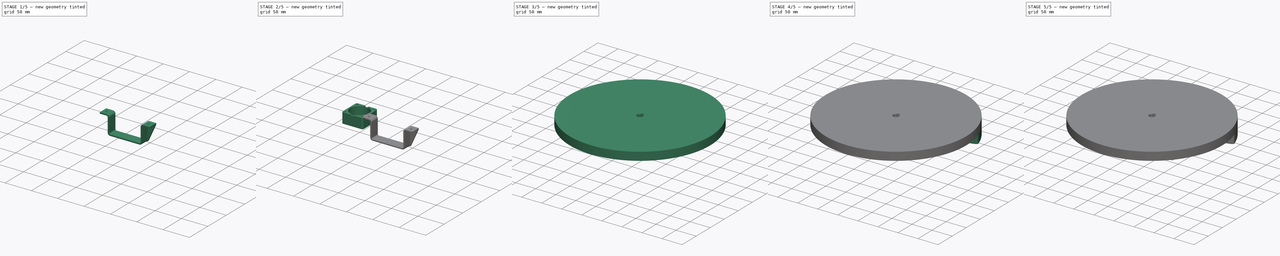
[diagram: build sequence overview — one tinted view per stage of 5, left to right]
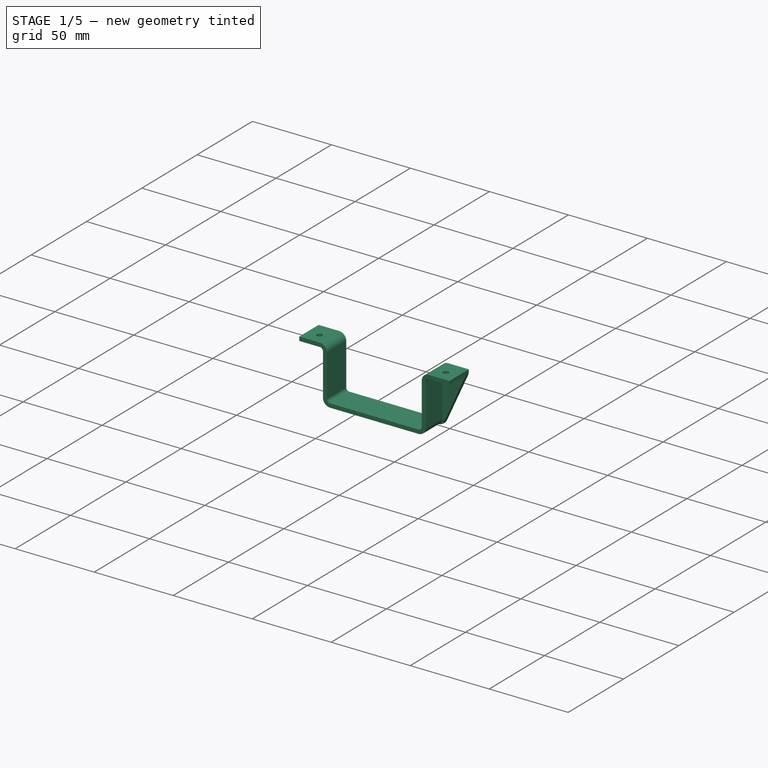
[diagram: stage 1 of 5 — iso view after this stage's code; geometry added in this stage tinted green]
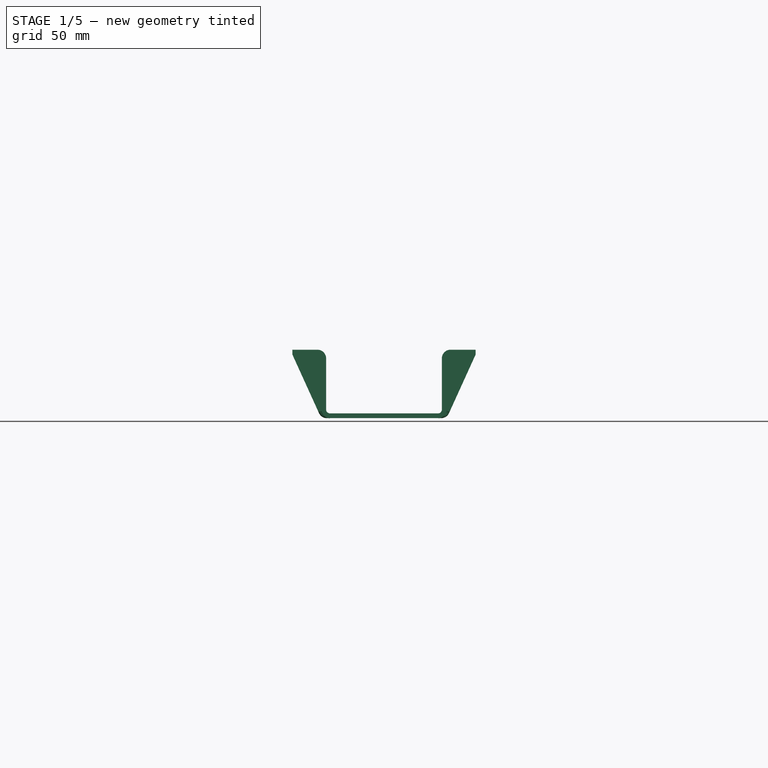
[diagram: stage 1 of 5 — front view after this stage's code; geometry added in this stage tinted green]
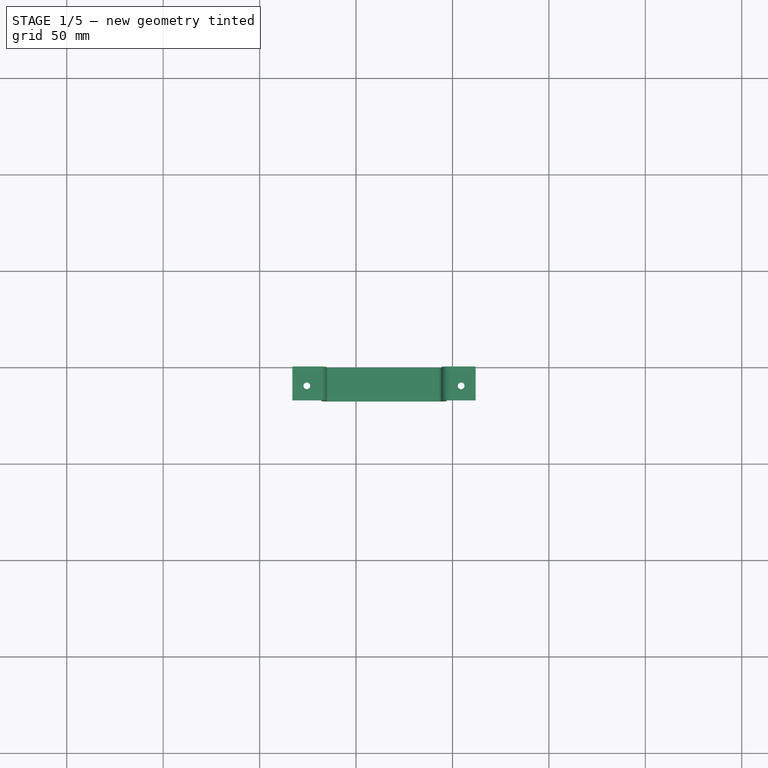
[diagram: stage 1 of 5 — top view after this stage's code; geometry added in this stage tinted green]
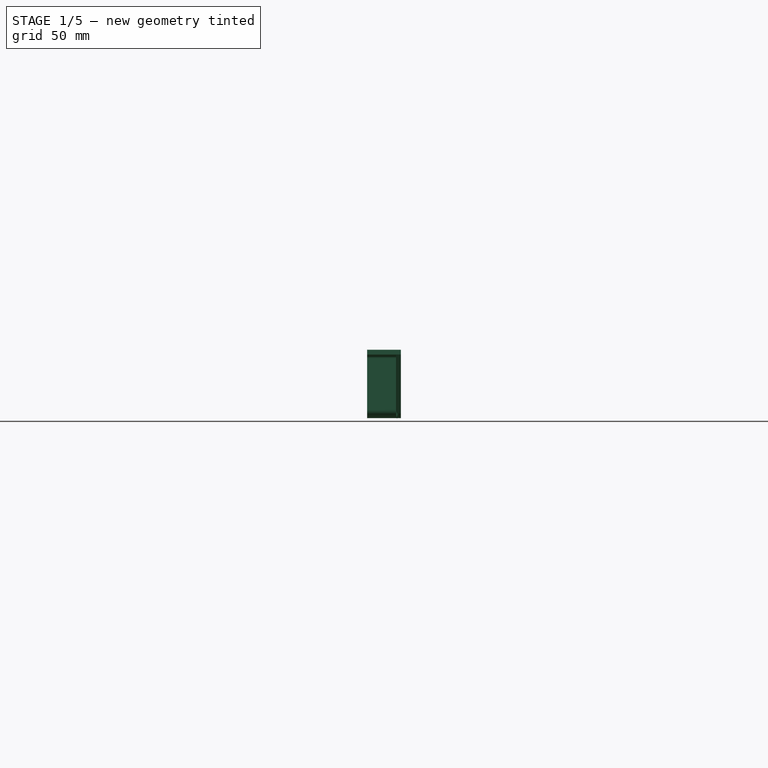
[diagram: stage 1 of 5 — right view after this stage's code; geometry added in this stage tinted green]
FCSTD DOCUMENT  (FreeCAD 0.20R29410 (Git))
Label: main_shape
License: All rights reserved
LicenseURL: http://en.wikipedia.org/wiki/All_rights_reserved
objects: Sketcher::SketchObject×13, PartDesign::Body×13, PartDesign::Fillet×11, PartDesign::Pad×9, PartDesign::FeatureBase×8, PartDesign::Pocket×4, PartDesign::PolarPattern×2, Part::Fillet×1, PartDesign::MultiTransform×1
note: 86 computed .brp shape members not serialized (recipe doc carries the construction recipe); baked Part::Feature solids carry a one-line shape summary decoded from their .brp

FEATURE [PartDesign::Body] Body004  label="fan"
  Group = -> [Sketch008,Pad006,Sketch011,Pocket002,Fillet002,Fillet003,Fillet004]
  Origin = -> Origin004
  Tip = -> Fillet004
FEATURE [Sketcher::SketchObject] Sketch012
  FullyConstrained = true
  MapMode = 5
  Placement = pos=(0,0,0) rot=(1,0,0;1.5708rad)
  Support = -> [XZ_Plane012]
  sketch-geometry (22):
    g0: LineSegment StartX=17 StartY=0 StartZ=0 EndX=34.5 EndY=0 EndZ=0
    g1: LineSegment StartX=112 StartY=0 StartZ=0 EndX=112 EndY=-35.5 EndZ=0
    g2: LineSegment StartX=97 StartY=-35.5 StartZ=0 EndX=32 EndY=-35.5 EndZ=0
    g3: LineSegment StartX=17 StartY=-35.5 StartZ=0 EndX=17 EndY=0 EndZ=0
    g4: LineSegment StartX=34.5 StartY=-33 StartZ=0 EndX=94.5 EndY=-33 EndZ=0
    g5: LineSegment StartX=94.5 StartY=-33 StartZ=0 EndX=94.5 EndY=0 EndZ=0
    g6: LineSegment StartX=34.5 StartY=0 StartZ=0 EndX=34.5 EndY=-33 EndZ=0
    g7: LineSegment StartX=17 StartY=0 StartZ=0 EndX=17 EndY=-2.5 EndZ=0
    g8: LineSegment StartX=17 StartY=-2.5 StartZ=0 EndX=32 EndY=-35.5 EndZ=0
    g9: LineSegment StartX=112 StartY=0 StartZ=0 EndX=112 EndY=-2.5 EndZ=0
    g10: LineSegment StartX=112 StartY=-2.5 StartZ=0 EndX=97 EndY=-35.5 EndZ=0
    g11: LineSegment StartX=32 StartY=-35.5 StartZ=0 EndX=97 EndY=-35.5 EndZ=0
    g12: LineSegment StartX=17 StartY=0 StartZ=0 EndX=34.5 EndY=0 EndZ=0
    g13: LineSegment StartX=34.5 StartY=0 StartZ=0 EndX=34.5 EndY=-33 EndZ=0
    g14: LineSegment StartX=34.5 StartY=-33 StartZ=0 EndX=94.5 EndY=-33 EndZ=0
    g15: LineSegment StartX=94.5 StartY=-33 StartZ=0 EndX=94.5 EndY=0 EndZ=0
    g16: LineSegment StartX=94.5 StartY=0 StartZ=0 EndX=112 EndY=0 EndZ=0
    g17: LineSegment StartX=97 StartY=-35.5 StartZ=0 EndX=32 EndY=-35.5 EndZ=0
    g18: LineSegment StartX=32 StartY=-35.5 StartZ=0 EndX=97 EndY=-35.5 EndZ=0
    g19: LineSegment StartX=94.5 StartY=0 StartZ=0 EndX=112 EndY=0 EndZ=0
    g20: LineSegment StartX=94.5 StartY=0 StartZ=0 EndX=112 EndY=0 EndZ=0
    g21: LineSegment StartX=34.5 StartY=0 StartZ=0 EndX=94.5 EndY=0 EndZ=0
  constraints (56):
    c: Coincident(g20,g1)
    c: Coincident(g3,g0)
    c: Horizontal(g0)
    c: Horizontal(g2)
    c: Vertical(g1)
    c: Vertical(g3)
    c: PointOnObject(g0,g-1)
    c: Coincident(g4,g5)
    c: Coincident(g6,g4)
    c: Horizontal(g4)
    c: Vertical(g5)
    c: Vertical(g6)
    c: DistanceX(g4,g4) = 60
    c: DistanceY(g6,g6) = 33
    c: Distance(g4,g2) = 2.5
    c: Distance(g0,g6) = 17.5
    c: Distance(g20,g5) = 17.5
    c: Distance(g0,g-1) = 17
    c: Coincident(g7,g0)
    c: PointOnObject(g7,g3)
    c: Coincident(g8,g7)
    c: Coincident(g9,g20)
    c: PointOnObject(g9,g1)
    c: Coincident(g10,g9)
    c: Coincident(g11,g8)
    c: Coincident(g11,g10)
    c: Distance(g8,g6) = 2.5
    c: Distance(g10,g5) = 2.5
    c: Coincident(g12,g7)
    c: Coincident(g13,g4)
    c: Coincident(g14,g4)
    c: Coincident(g14,g4)
    c: Coincident(g15,g4)
    c: Coincident(g15,g5)
    c: Coincident(g16,g5)
    c: Coincident(g16,g9)
    c: Coincident(g17,g10)
    c: Coincident(g17,g8)
    c: Distance(g7,g7) = 2.5
    c: Coincident(g18,g8)
    c: Coincident(g18,g10)
    c: Coincident(g19,g5)
    c: Coincident(g19,g9)
    c: Coincident(g20,g5)
    c: Coincident(g2,g8)
    c: Coincident(g2,g10)
    c: DistanceY(g9,g9) = 2.5
    c: Coincident(g0,g6)
    c: Coincident(g0,g12)
    c: Coincident(g0,g13)
    c: Horizontal(g16)
    c: Coincident(g21,g0)
    c: Coincident(g21,g5)
    c: Horizontal(g21)
    c: PointOnObject(g1,g2)
    c: PointOnObject(g3,g2)
FEATURE [PartDesign::Pad] Pad007
  Direction = (0,-1,2e-16)
  Length = 2.5
  Length2 = 10
  Placement = pos=(0,0,0) rot=(1,0,0;1.5708rad)
  Profile = -> Sketch012
  ReferenceAxis = -> Sketch012 [N_Axis]
  Type = 0
FEATURE [Sketcher::SketchObject] Sketch013
  ExternalGeometry = -> [Pad007]
  FullyConstrained = true
  MapMode = 5
  Placement = pos=(0,0,0) rot=(1,0,0;1.5708rad)
  Support = -> [XZ_Plane012]
  sketch-geometry (12):
    g0: LineSegment StartX=17 StartY=0 StartZ=0 EndX=34.5 EndY=0 EndZ=0
    g1: LineSegment StartX=32 StartY=-2.5 StartZ=0 EndX=17 EndY=-2.5 EndZ=0
    g2: LineSegment StartX=17 StartY=-2.5 StartZ=0 EndX=17 EndY=0 EndZ=0
    g3: LineSegment StartX=32 StartY=-2.5 StartZ=0 EndX=32 EndY=-35.5 EndZ=0
    g4: LineSegment StartX=34.5 StartY=-33 StartZ=0 EndX=34.5 EndY=0 EndZ=0
    g5: LineSegment StartX=112 StartY=0 StartZ=0 EndX=94.5 EndY=0 EndZ=0
    g6: LineSegment StartX=97 StartY=-2.5 StartZ=0 EndX=112 EndY=-2.5 EndZ=0
    g7: LineSegment StartX=112 StartY=-2.5 StartZ=0 EndX=112 EndY=0 EndZ=0
    g8: LineSegment StartX=97 StartY=-2.5 StartZ=0 EndX=97 EndY=-35.5 EndZ=0
    g9: LineSegment StartX=94.5 StartY=-33 StartZ=0 EndX=94.5 EndY=0 EndZ=0
    g10: LineSegment StartX=94.5 StartY=-33 StartZ=0 EndX=34.5 EndY=-33 EndZ=0
    g11: LineSegment StartX=32 StartY=-35.5 StartZ=0 EndX=97 EndY=-35.5 EndZ=0
  constraints (32):
    c: Coincident(g1,g2)
    c: Coincident(g2,g0)
    c: Horizontal(g0)
    c: Horizontal(g1)
    c: Vertical(g2)
    c: Coincident(g0,g-7)
    c: Vertical(g3)
    c: Vertical(g4)
    c: Coincident(g6,g7)
    c: Coincident(g7,g5)
    c: Horizontal(g5)
    c: Horizontal(g6)
    c: Vertical(g7)
    c: Coincident(g5,g-6)
    c: Vertical(g8)
    c: Vertical(g9)
    c: Coincident(g10,g-5)
    c: Coincident(g11,g3)
    c: Coincident(g11,g8)
    c: Horizontal(g11)
    c: Coincident(g0,g4)
    c: Coincident(g5,g9)
    c: DistanceY(g2,g2) = 2.5
    c: DistanceY(g7,g7) = 2.5
    c: Coincident(g8,g6)
    c: Coincident(g1,g3)
    c: DistanceX(g3,g4) = 2.5
    c: DistanceX(g9,g8) = 2.5
    c: DistanceY(g3,g4) = 2.5
    c: Coincident(g9,g10)
    c: Coincident(g4,g10)
    c: Coincident(g4,g-4)
FEATURE [PartDesign::Pad] Pad008
  BaseFeature = -> Pad007
  Direction = (0,-1,2e-16)
  Length = 17.5
  Length2 = 10
  Placement = pos=(0,0,0) rot=(1,0,0;1.5708rad)
  Profile = -> Sketch013
  ReferenceAxis = -> Sketch013 [N_Axis]
  Type = 0
FEATURE [Sketcher::SketchObject] Sketch014
  ExternalGeometry = -> [Pad008]
  FullyConstrained = true
  MapMode = 5
  Support = -> [XY_Plane012]
  sketch-geometry (2):
    g0: Circle CenterX=24.5 CenterY=-10 CenterZ=0 NormalX=0 NormalY=0 NormalZ=1 AngleXU=0 Radius=1.75
    g1: Circle CenterX=104.5 CenterY=-10 CenterZ=0 NormalX=0 NormalY=0 NormalZ=1 AngleXU=0 Radius=1.75
  constraints (4):
    c: Symmetric(g-5,g-6,g1)
    c: Symmetric(g-3,g-4,g0)
    c: Diameter(g0) = 3.5
    c: Equal(g0,g1)
FEATURE [PartDesign::Pocket] Pocket003
  BaseFeature = -> Pad008
  Direction = (0,0,-1)
  Length = 5
  Length2 = 5
  Placement = pos=(0,0,0) rot=(1,0,0;1.5708rad)
  Profile = -> Sketch014
  ReferenceAxis = -> Sketch014 [N_Axis]
  Type = 1
FEATURE [PartDesign::Fillet] Fillet005
  Base = -> Pocket003 [Edge56,Edge29,Edge8,Edge32]
  BaseFeature = -> Pocket003
  Placement = pos=(0,0,0) rot=(1,0,0;1.5708rad)
  Radius = 2
  SupportTransform = false
  UseAllEdges = false
FEATURE [PartDesign::Fillet] Fillet006
  Base = -> Fillet005 [Edge66,Edge36,Edge67,Edge37]
  BaseFeature = -> Fillet005
  Placement = pos=(0,0,0) rot=(1,0,0;1.5708rad)
  Radius = 4.5
  SupportTransform = false
  UseAllEdges = false
FEATURE [PartDesign::Fillet] Fillet007
  Base = -> Fillet006 [Edge93,Edge96]
  BaseFeature = -> Fillet006
  Placement = pos=(0,0,0) rot=(1,0,0;1.5708rad)
  Radius = 2
  SupportTransform = false
  UseAllEdges = false
FEATURE [PartDesign::Fillet] Fillet008
  Base = -> Fillet007 [Edge67,Edge99,Edge53,Edge89]
  BaseFeature = -> Fillet007
  Placement = pos=(0,0,0) rot=(1,0,0;1.5708rad)
  Radius = 4.5
  SupportTransform = false
  UseAllEdges = false
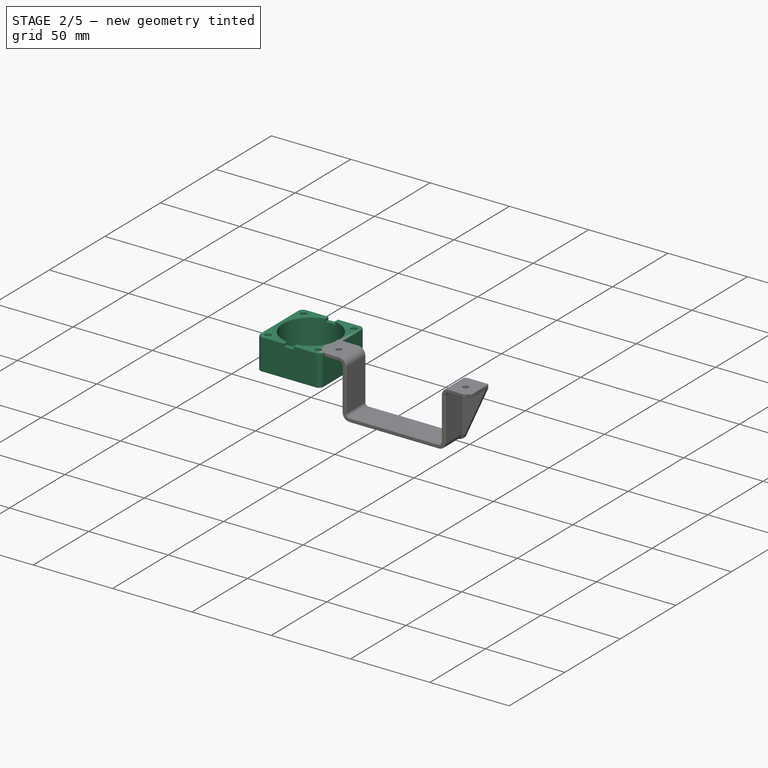
[diagram: stage 2 of 5 — iso view after this stage's code; geometry added in this stage tinted green]
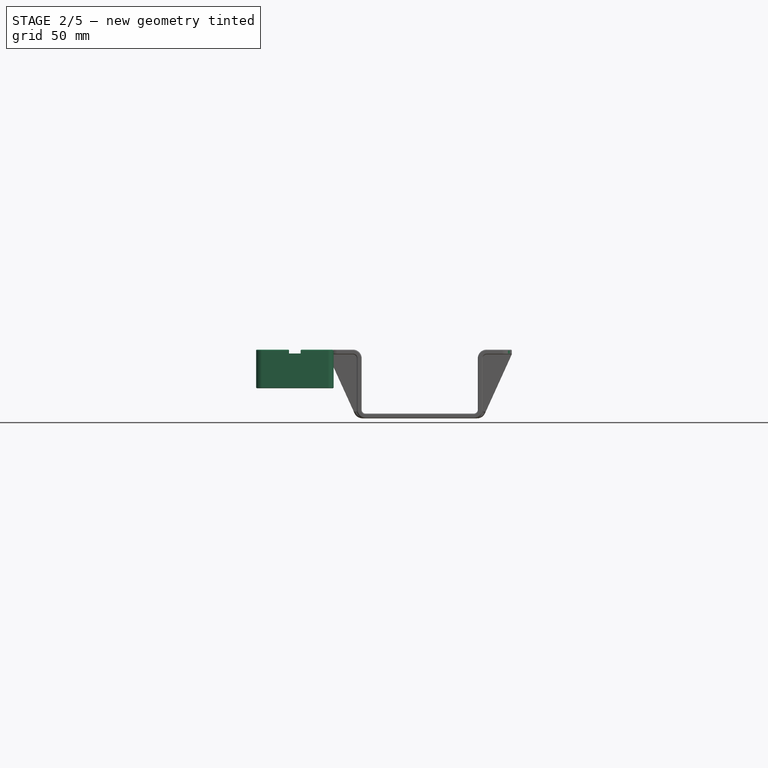
[diagram: stage 2 of 5 — front view after this stage's code; geometry added in this stage tinted green]
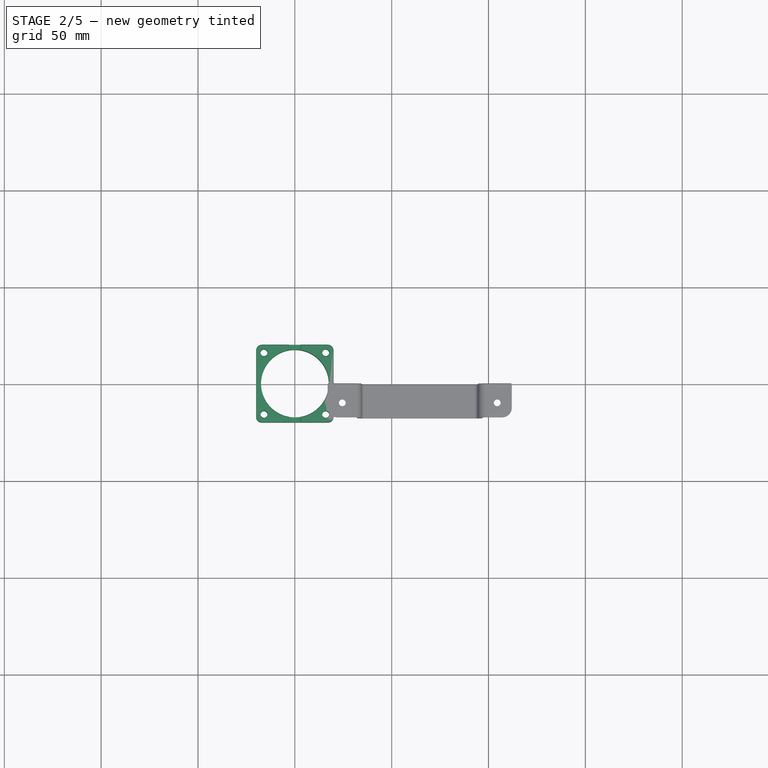
[diagram: stage 2 of 5 — top view after this stage's code; geometry added in this stage tinted green]
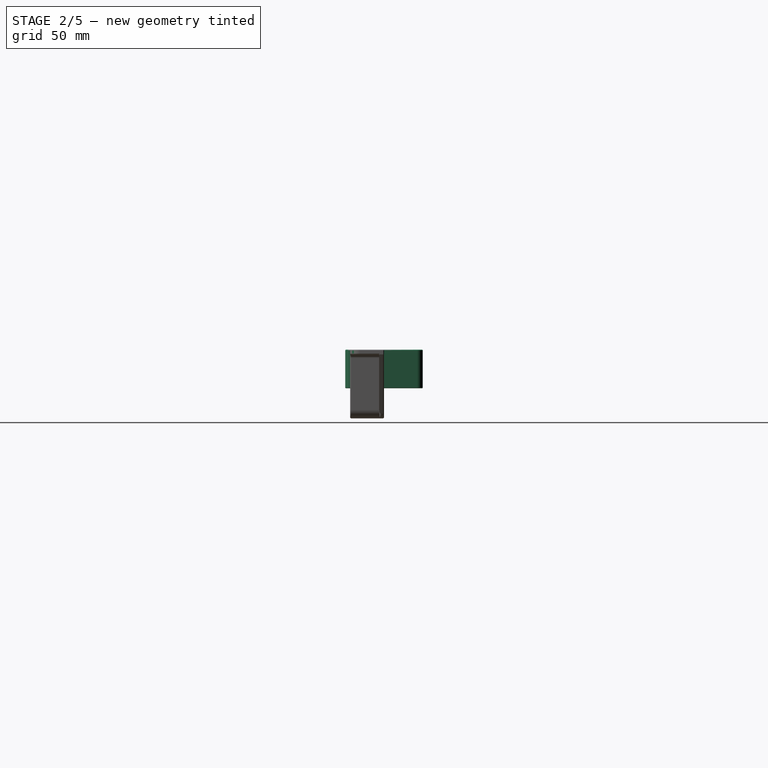
[diagram: stage 2 of 5 — right view after this stage's code; geometry added in this stage tinted green]
FEATURE [PartDesign::Body] Body003
  BaseFeature = -> Body002
  Group = -> [Clone]
  Origin = -> Origin003
  Placement = pos=(-132,0,0) rot=(0,0,1;0rad)
  Tip = -> Clone
FEATURE [Sketcher::SketchObject] Sketch008
  FullyConstrained = true
  MapMode = 5
  Support = -> [XY_Plane004]
  sketch-geometry (13):
    g0: LineSegment StartX=-20 StartY=-20 StartZ=0 EndX=-20 EndY=20 EndZ=0
    g1: LineSegment StartX=-20 StartY=20 StartZ=0 EndX=20 EndY=20 EndZ=0
    g2: LineSegment StartX=20 StartY=20 StartZ=0 EndX=20 EndY=-20 EndZ=0
    g3: LineSegment StartX=20 StartY=-20 StartZ=0 EndX=-20 EndY=-20 EndZ=0
    g4: GeomPoint X=0 Y=0 Z=0
    g5: LineSegment StartX=-20 StartY=20 StartZ=0 EndX=20 EndY=-20 EndZ=0
    g6: LineSegment StartX=20 StartY=20 StartZ=0 EndX=-20 EndY=-20 EndZ=0
    g7: Circle CenterX=-15.9276 CenterY=15.9276 CenterZ=0 NormalX=0 NormalY=0 NormalZ=1 AngleXU=0 Radius=1.8
    g8: Circle CenterX=15.9276 CenterY=-15.9276 CenterZ=0 NormalX=0 NormalY=0 NormalZ=1 AngleXU=0 Radius=1.8
    g9: Circle CenterX=15.9276 CenterY=15.9276 CenterZ=0 NormalX=0 NormalY=0 NormalZ=1 AngleXU=0 Radius=1.8
    g10: Circle CenterX=-15.9276 CenterY=-15.9276 CenterZ=0 NormalX=0 NormalY=0 NormalZ=1 AngleXU=0 Radius=1.8
    g11: Circle CenterX=0 CenterY=0 CenterZ=0 NormalX=0 NormalY=0 NormalZ=1 AngleXU=0 Radius=22.525
    g12: Circle CenterX=0 CenterY=0 CenterZ=0 NormalX=0 NormalY=0 NormalZ=1 AngleXU=0 Radius=17.5
  constraints (32):
    c: Coincident(g0,g1)
    c: Coincident(g1,g2)
    c: Coincident(g2,g3)
    c: Coincident(g3,g0)
    c: Horizontal(g1)
    c: Horizontal(g3)
    c: Vertical(g0)
    c: Vertical(g2)
    c: Symmetric(g1,g0,g4)
    c: Coincident(g4,g-1)
    c: DistanceX(g1,g1) = 40
    c: DistanceY(g0,g0) = 40
    c: Coincident(g5,g0)
    c: Coincident(g5,g2)
    c: Coincident(g6,g1)
    c: Coincident(g6,g0)
    c: PointOnObject(g7,g5)
    c: Diameter(g7) = 3.6
    c: PointOnObject(g8,g5)
    c: Distance(g7,g8) = 45.05
    c: PointOnObject(g9,g6)
    c: PointOnObject(g10,g6)
    c: Equal(g9,g7)
    c: Equal(g10,g7)
    c: Equal(g8,g7)
    c: Coincident(g11,g4)
    c: PointOnObject(g7,g11)
    c: PointOnObject(g8,g11)
    c: PointOnObject(g9,g11)
    c: PointOnObject(g10,g11)
    c: Coincident(g12,g4)
    c: Diameter(g12) = 35
FEATURE [PartDesign::Pad] Pad006
  Direction = (0,0,1)
  Length = 20
  Length2 = 10
  Profile = -> Sketch008
  ReferenceAxis = -> Sketch008 [N_Axis]
  Reversed = true
  Type = 0
FEATURE [PartDesign::Body] Body
  Group = -> [Sketch,Pad,Sketch009,Pocket,MultiTransform,PolarPattern,PolarPattern001,Sketch010,Pocket001,Fillet001]
  Origin = -> Origin
  Tip = -> Fillet001
FEATURE [Sketcher::SketchObject] Sketch011
  FullyConstrained = true
  MapMode = 5
  Support = -> [XY_Plane004]
  sketch-geometry (5):
    g0: LineSegment StartX=-3 StartY=-21 StartZ=0 EndX=-3 EndY=21 EndZ=0
    g1: LineSegment StartX=-3 StartY=21 StartZ=0 EndX=3 EndY=21 EndZ=0
    g2: LineSegment StartX=3 StartY=21 StartZ=0 EndX=3 EndY=-21 EndZ=0
    g3: LineSegment StartX=3 StartY=-21 StartZ=0 EndX=-3 EndY=-21 EndZ=0
    g4: GeomPoint X=0 Y=0 Z=0
  constraints (12):
    c: Coincident(g0,g1)
    c: Coincident(g1,g2)
    c: Coincident(g2,g3)
    c: Coincident(g3,g0)
    c: Horizontal(g1)
    c: Horizontal(g3)
    c: Vertical(g0)
    c: Vertical(g2)
    c: Symmetric(g1,g0,g4)
    c: Coincident(g4,g-1)
    c: DistanceX(g1,g1) = 6
    c: DistanceY(g2,g2) = 42
FEATURE [PartDesign::Pocket] Pocket002
  BaseFeature = -> Pad006
  Direction = (0,0,-1)
  Length = 2
  Length2 = 5
  Profile = -> Sketch011
  ReferenceAxis = -> Sketch011 [N_Axis]
  Type = 0
FEATURE [PartDesign::Fillet] Fillet002
  Base = -> Pocket002 [Edge1,Edge2,Edge11,Edge17]
  BaseFeature = -> Pocket002
  Radius = 3
  SupportTransform = false
  UseAllEdges = false
FEATURE [PartDesign::Fillet] Fillet003
  Base = -> Fillet002 [Face5,Face2,Face18]
  BaseFeature = -> Fillet002
  Radius = 0.5
  SupportTransform = false
  UseAllEdges = false
FEATURE [PartDesign::Fillet] Fillet009
  Base = -> Fillet008 [Edge3,Edge18]
  BaseFeature = -> Fillet008
  Placement = pos=(0,0,0) rot=(1,0,0;1.5708rad)
  Radius = 5
  SupportTransform = false
  UseAllEdges = false
FEATURE [PartDesign::Fillet] Fillet010
  Base = -> Fillet009 [Face1]
  BaseFeature = -> Fillet009
  Placement = pos=(0,0,0) rot=(1,0,0;1.5708rad)
  Radius = 0.5
  SupportTransform = false
  UseAllEdges = false
FEATURE [PartDesign::Fillet] Fillet011
  Base = -> Fillet010 [Edge131,Edge134,Edge136,Edge141,Edge147,Edge152,Edge156,Edge158,Edge162,Edge173,Edge167,Edge184,Edge181,Edge176,Edge143,Edge177,Edge180,Edge171,Edge125,Edge170]
  BaseFeature = -> Fillet010
  Placement = pos=(0,0,0) rot=(1,0,0;1.5708rad)
  Radius = 0.5
  SupportTransform = false
  UseAllEdges = false
FEATURE [PartDesign::Body] Body012  label="brick_holder"
  Group = -> [Sketch012,Pad007,Sketch013,Pad008,Sketch014,Pocket003,Fillet005,Fillet006,Fillet007,Fillet008,Fillet009,Fillet010,Fillet011]
  Origin = -> Origin012
  Tip = -> Fillet011
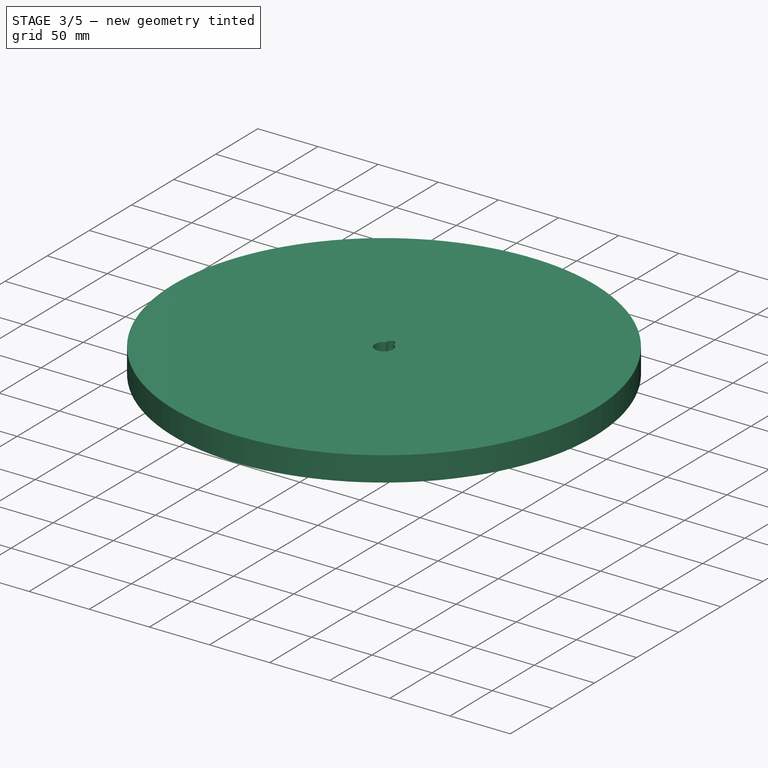
[diagram: stage 3 of 5 — iso view after this stage's code; geometry added in this stage tinted green]
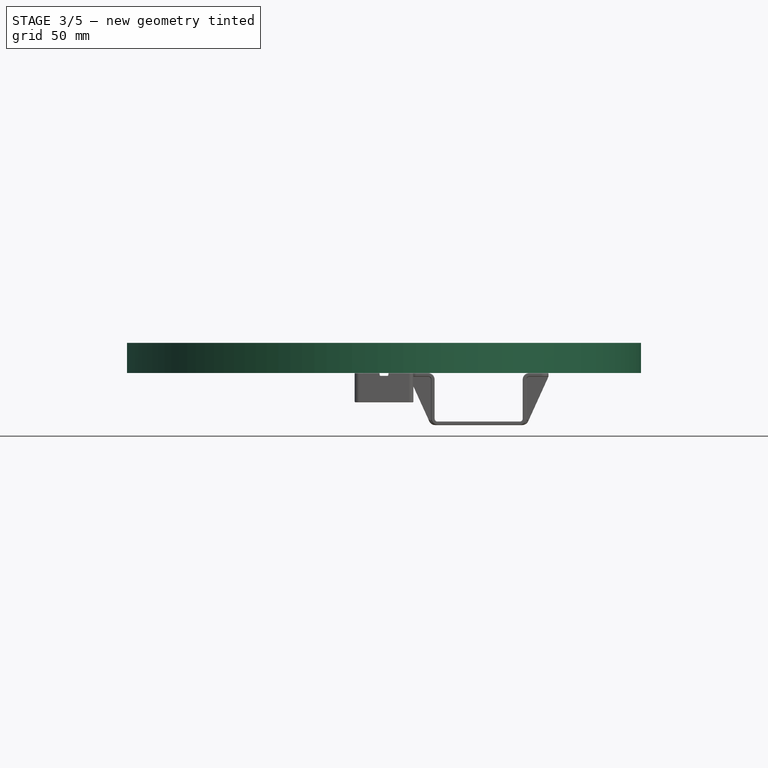
[diagram: stage 3 of 5 — front view after this stage's code; geometry added in this stage tinted green]
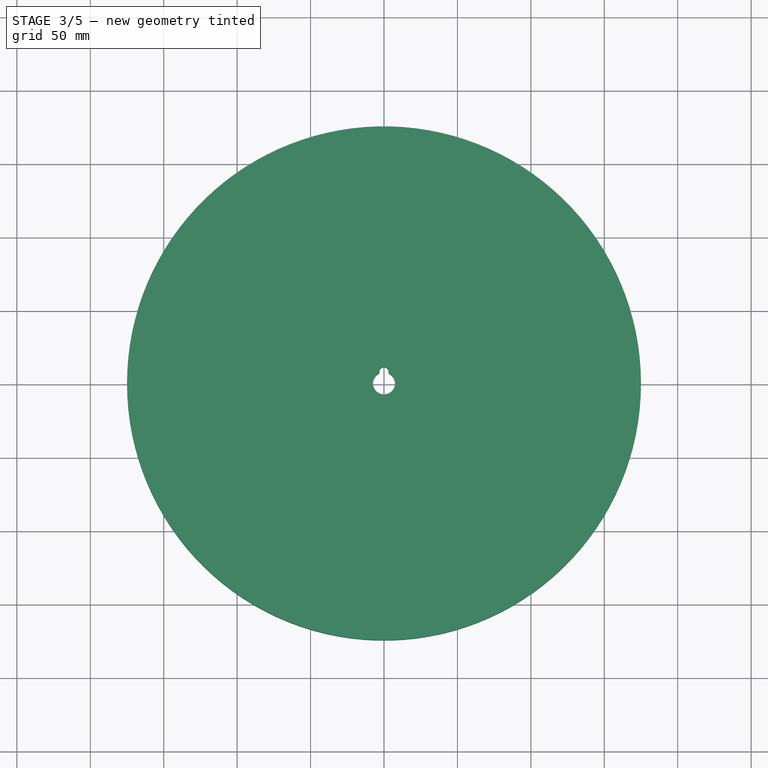
[diagram: stage 3 of 5 — top view after this stage's code; geometry added in this stage tinted green]
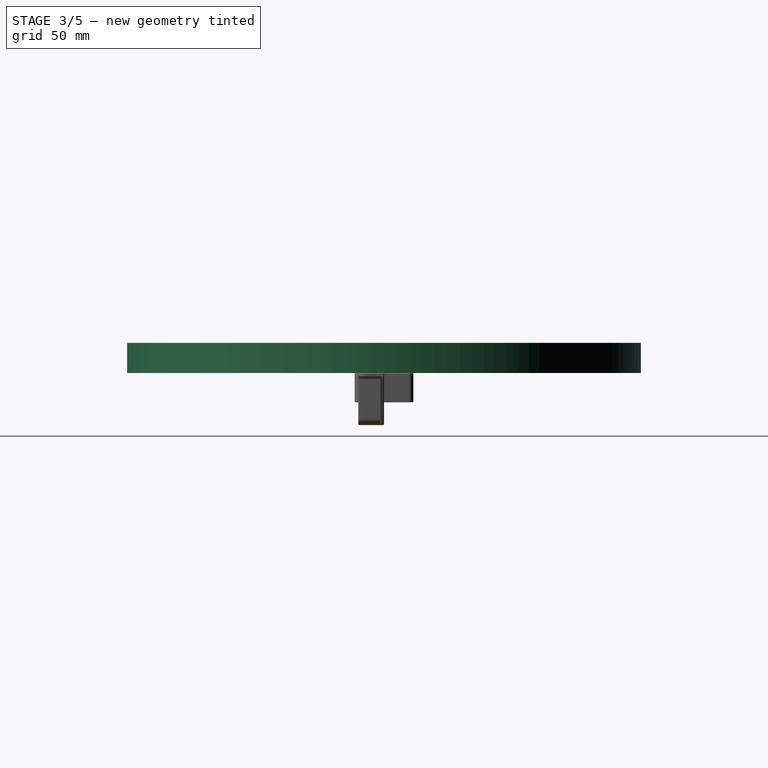
[diagram: stage 3 of 5 — right view after this stage's code; geometry added in this stage tinted green]
FEATURE [PartDesign::Body] Body002  label="Power_brick"
  Group = -> [Sketch004,Pad002,Sketch005,Pad003,Sketch006,Pad004,Sketch007,Pad005]
  Origin = -> Origin002
  Placement = pos=(63,6,0) rot=(0,0,1;0rad)
  Tip = -> Pad005
FEATURE [PartDesign::Pad] Pad
  Direction = (0,0,1)
  Length = 20.5
  Length2 = 10
  Profile = -> Sketch
  ReferenceAxis = -> Sketch [N_Axis]
  Type = 0
FEATURE [PartDesign::Body] Body011
  BaseFeature = -> Fillet
  Group = -> [Clone007]
  Origin = -> Origin011
  Placement = pos=(0,0,-12) rot=(0,0,1;2.35619rad)
  Tip = -> Clone007
FEATURE [Sketcher::SketchObject] Sketch009
  FullyConstrained = true
  MapMode = 5
  Support = -> [XY_Plane]
  sketch-geometry (3):
    g0: Circle CenterX=0 CenterY=0 CenterZ=0 NormalX=0 NormalY=0 NormalZ=1 AngleXU=0 Radius=162.5
    g1: LineSegment StartX=25.4206 StartY=160.499 StartZ=0 EndX=0 EndY=0 EndZ=0
    g2: Circle CenterX=25.4206 CenterY=160.499 CenterZ=0 NormalX=0 NormalY=0 NormalZ=1 AngleXU=0 Radius=3
  constraints (7):
    c: Coincident(g0,g-1)
    c: Diameter(g0) = 325
    c: PointOnObject(g1,g0)
    c: Coincident(g1,g0)
    c: Angle(g1,g-2) = 0.15708
    c: Coincident(g2,g1)
    c: Diameter(g2) = 6
FEATURE [PartDesign::Pocket] Pocket
  BaseFeature = -> Pad
  Direction = (0,0,-1)
  Length = 5
  Length2 = 5
  Profile = -> Sketch009
  ReferenceAxis = -> Sketch009 [N_Axis]
  Reversed = true
  Type = 0
FEATURE [PartDesign::PolarPattern] PolarPattern
  Angle = 9
  Axis = -> Sketch009 [N_Axis]
  Occurrences = 2
  Reversed = true
FEATURE [PartDesign::PolarPattern] PolarPattern001
  Angle = 360
  Axis = -> Sketch009 [N_Axis]
  Occurrences = 8
FEATURE [PartDesign::MultiTransform] MultiTransform
  BaseFeature = -> Pocket
  Originals = -> [Pocket]
  Transformations = -> [PolarPattern,PolarPattern001]
FEATURE [Sketcher::SketchObject] Sketch010
  FullyConstrained = true
  MapMode = 5
  Support = -> [XY_Plane]
  sketch-geometry (4):
    g0: ArcOfCircle CenterX=0 CenterY=0 CenterZ=0 NormalX=0 NormalY=0 NormalZ=1 AngleXU=0 Radius=3.1 StartAngle=3.14159 EndAngle=6.28319
    g1: ArcOfCircle CenterX=0 CenterY=8 CenterZ=0 NormalX=0 NormalY=0 NormalZ=1 AngleXU=0 Radius=3.1 StartAngle=0 EndAngle=3.14159
    g2: LineSegment StartX=3.1 StartY=-8e-16 StartZ=0 EndX=3.1 EndY=8 EndZ=0
    g3: LineSegment StartX=-3.1 StartY=8 StartZ=0 EndX=-3.1 EndY=0 EndZ=0
  constraints (9):
    c: Tangent(g0,g2) = -1.5708
    c: Tangent(g2,g1) = -1.5708
    c: Tangent(g1,g3) = -1.5708
    c: Tangent(g3,g0) = -1.5708
    c: Equal(g0,g1)
    c: Coincident(g0,g-1)
    c: PointOnObject(g1,g-2)
    c: Diameter(g1) = 6.2
    c: Distance(g1,g0) = 8
FEATURE [PartDesign::Pocket] Pocket001
  BaseFeature = -> MultiTransform
  Direction = (0,0,-1)
  Length = 5
  Length2 = 5
  Profile = -> Sketch010
  ReferenceAxis = -> Sketch010 [N_Axis]
  Reversed = true
  Type = 1
FEATURE [PartDesign::Fillet] Fillet001
  Base = -> Pocket001 [Edge58,Edge54]
  BaseFeature = -> Pocket001
  Radius = 1
  SupportTransform = false
  UseAllEdges = false
FEATURE [PartDesign::Fillet] Fillet004
  Base = -> Fillet003 [Edge65,Edge67,Edge95,Edge99]
  BaseFeature = -> Fillet003
  Radius = 0.75
  SupportTransform = false
  UseAllEdges = false
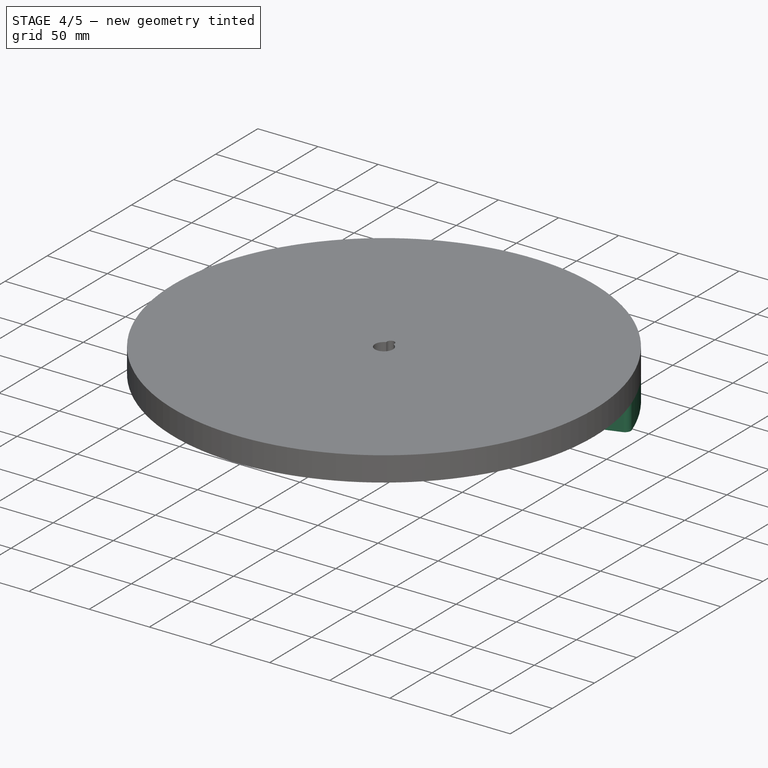
[diagram: stage 4 of 5 — iso view after this stage's code; geometry added in this stage tinted green]
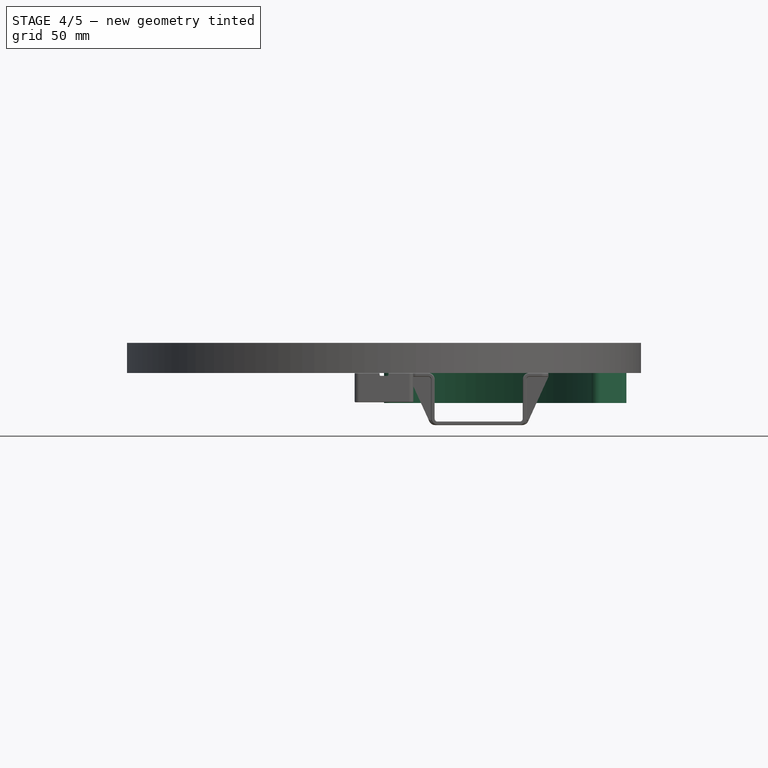
[diagram: stage 4 of 5 — front view after this stage's code; geometry added in this stage tinted green]
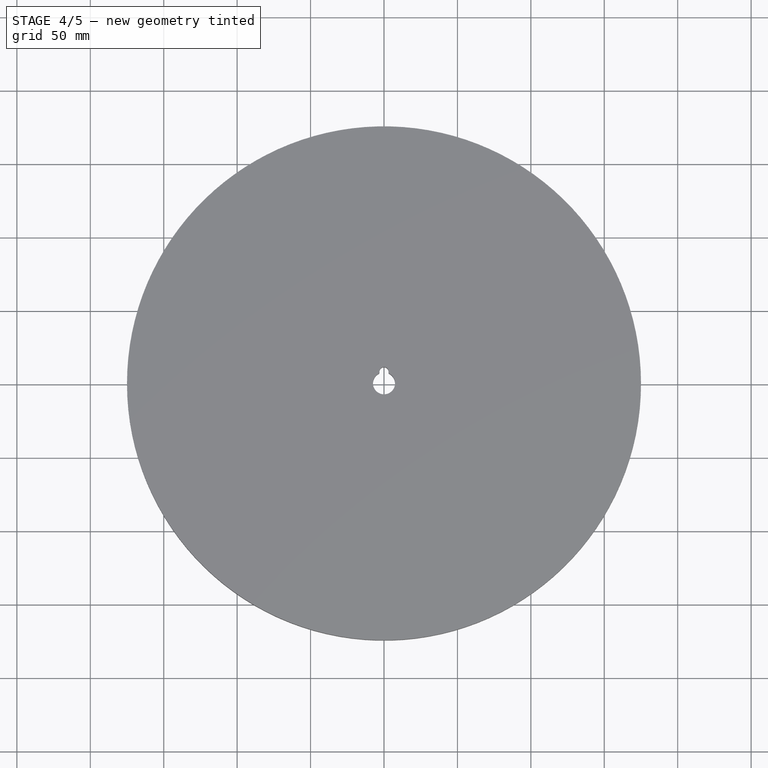
[diagram: stage 4 of 5 — top view after this stage's code; geometry added in this stage tinted green]
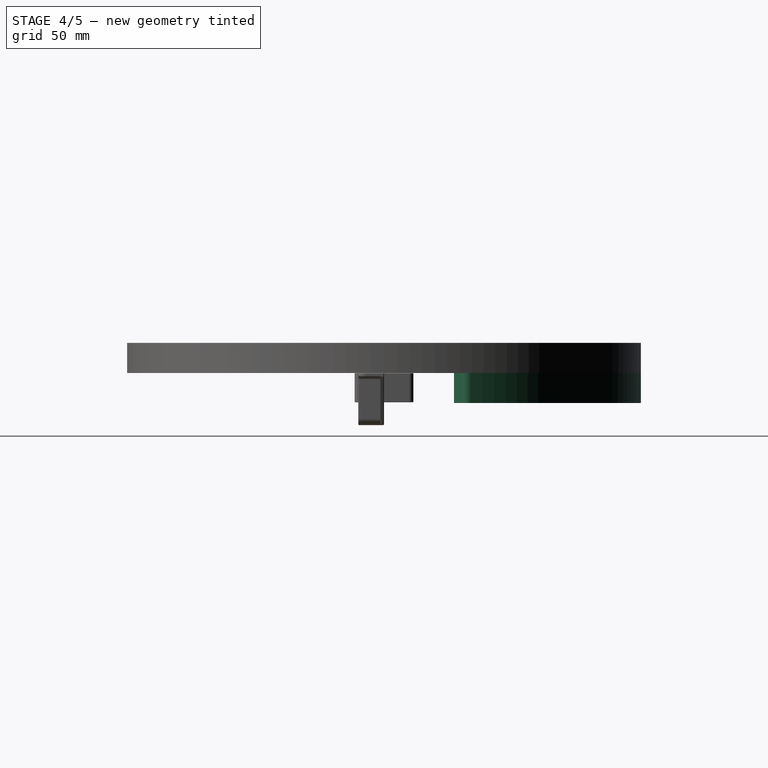
[diagram: stage 4 of 5 — right view after this stage's code; geometry added in this stage tinted green]
FEATURE [Sketcher::SketchObject] Sketch
  FullyConstrained = true
  MapMode = 5
  Support = -> [XY_Plane]
  sketch-geometry (8):
    g0: Circle CenterX=0 CenterY=0 CenterZ=0 NormalX=0 NormalY=0 NormalZ=1 AngleXU=0 Radius=175
    g1: Circle CenterX=0 CenterY=0 CenterZ=0 NormalX=0 NormalY=0 NormalZ=1 AngleXU=0 Radius=25
    g2: Circle CenterX=0 CenterY=0 CenterZ=0 NormalX=0 NormalY=0 NormalZ=1 AngleXU=0 Radius=22
    g3: Circle CenterX=0 CenterY=0 CenterZ=0 NormalX=0 NormalY=0 NormalZ=1 AngleXU=0 Radius=7.5
    g4: Circle CenterX=0 CenterY=0 CenterZ=0 NormalX=0 NormalY=0 NormalZ=1 AngleXU=0 Radius=6
    g5: Circle CenterX=0 CenterY=0 CenterZ=0 NormalX=0 NormalY=0 NormalZ=1 AngleXU=0 Radius=162.5
    g6: Circle CenterX=25.4206 CenterY=160.499 CenterZ=0 NormalX=0 NormalY=0 NormalZ=1 AngleXU=0 Radius=3
    g7: LineSegment StartX=25.4206 StartY=160.499 StartZ=0 EndX=0 EndY=0 EndZ=0
  constraints (17):
    c: Coincident(g0,g-1)
    c: Diameter(g0) = 350
    c: Coincident(g1,g0)
    c: Diameter(g1) = 50
    c: Coincident(g2,g0)
    c: Coincident(g3,g0)
    c: Diameter(g2) = 44
    c: Diameter(g3) = 15
    c: Coincident(g4,g0)
    c: Diameter(g4) = 12
    c: Coincident(g5,g0)
    c: Diameter(g5) = 325
    c: PointOnObject(g6,g5)
    c: Coincident(g7,g6)
    c: Coincident(g7,g0)
    c: Angle(g7,g-2) = 0.15708
    c: Diameter(g6) = 6
FEATURE [Sketcher::SketchObject] Sketch003
  FullyConstrained = true
  MapMode = 5
  Support = -> [XY_Plane001]
  sketch-geometry (13):
    g0: ArcOfCircle CenterX=0 CenterY=0 CenterZ=0 NormalX=0 NormalY=0 NormalZ=1 AngleXU=0 Radius=175 StartAngle=0.314159 EndAngle=1.5708
    g1: ArcOfCircle CenterX=0 CenterY=0 CenterZ=0 NormalX=0 NormalY=0 NormalZ=1 AngleXU=0 Radius=150 StartAngle=0.314159 EndAngle=1.5708
    g2: LineSegment StartX=9.2e-15 StartY=150 StartZ=0 EndX=9.2e-15 EndY=175 EndZ=0
    g3: LineSegment StartX=142.658 StartY=46.3525 StartZ=0 EndX=166.435 EndY=54.078 EndZ=0
    g4: LineSegment StartX=155.926 StartY=79.4483 StartZ=0 EndX=133.651 EndY=68.0986 EndZ=0
    g5: Circle CenterX=144.789 CenterY=73.7735 CenterZ=0 NormalX=0 NormalY=0 NormalZ=1 AngleXU=0 Radius=3
    g6: Circle CenterX=131.465 CenterY=95.5151 CenterZ=0 NormalX=0 NormalY=0 NormalZ=1 AngleXU=0 Radius=3
    g7: Circle CenterX=0 CenterY=0 CenterZ=0 NormalX=0 NormalY=0 NormalZ=1 AngleXU=0 Radius=162.5
    g8: LineSegment StartX=141.578 StartY=102.862 StartZ=0 EndX=121.353 EndY=88.1678 EndZ=0
    g9: LineSegment StartX=27.376 StartY=172.845 StartZ=0 EndX=23.4652 EndY=148.153 EndZ=0
    g10: LineSegment StartX=54.078 StartY=166.435 StartZ=0 EndX=46.3525 EndY=142.658 EndZ=0
    g11: Circle CenterX=50.2153 CenterY=154.547 CenterZ=0 NormalX=0 NormalY=0 NormalZ=1 AngleXU=0 Radius=3
    g12: Circle CenterX=25.4206 CenterY=160.499 CenterZ=0 NormalX=0 NormalY=0 NormalZ=1 AngleXU=0 Radius=3
  constraints (41):
    c: Coincident(g0,g-1)
    c: Coincident(g1,g0)
    c: Diameter(g0) = 350
    c: Diameter(g1) = 300
    c: Vertical(g2)
    c: Coincident(g0,g2)
    c: Coincident(g2,g1)
    c: Coincident(g0,g3)
    c: Angle(g-1,g3) = 0.314159
    c: Coincident(g3,g1)
    c: PointOnObject(g0,g3)
    c: PointOnObject(g0,g2)
    c: PointOnObject(g4,g0)
    c: PointOnObject(g4,g1)
    c: PointOnObject(g0,g4)
    c: Diameter(g5) = 6
    c: Equal(g6,g5)
    c: Symmetric(g4,g4,g5)
    c: Coincident(g7,g0)
    c: PointOnObject(g5,g7)
    c: PointOnObject(g6,g7)
    c: Angle(g3,g4) = 0.15708
    c: PointOnObject(g8,g0)
    c: PointOnObject(g8,g1)
    c: PointOnObject(g6,g8)
    c: Angle(g4,g8) = 0.15708
    c: PointOnObject(g0,g8)
    c: PointOnObject(g9,g0)
    c: PointOnObject(g9,g1)
    c: PointOnObject(g10,g0)
    c: PointOnObject(g10,g1)
    c: PointOnObject(g0,g10)
    c: PointOnObject(g0,g9)
    c: PointOnObject(g11,g7)
    c: PointOnObject(g12,g7)
    c: PointOnObject(g12,g9)
    c: PointOnObject(g11,g10)
    c: Equal(g11,g6)
    c: Equal(g12,g5)
    c: Angle(g9,g2) = 0.15708
    c: Angle(g10,g9) = 0.15708
FEATURE [PartDesign::Pad] Pad001
  Direction = (0,0,1)
  Length = 20.5
  Length2 = 10
  Profile = -> Sketch003
  ReferenceAxis = -> Sketch003 [N_Axis]
  Reversed = true
  Type = 0
FEATURE [PartDesign::Body] Body001  label="banana"
  Group = -> [Sketch003,Pad001]
  Origin = -> Origin001
  Tip = -> Pad001
FEATURE [Part::Fillet] Fillet  label="Banana_r"
  Base = -> Pad001
  Edges = 4 edges r=5: [Edge1,Edge2,Edge5,Edge8]
FEATURE [PartDesign::Body] Body006
  BaseFeature = -> Fillet
  Group = -> [Clone002]
  Origin = -> Origin006
  Placement = pos=(0,0,0) rot=(0,0,1;3.14159rad)
  Tip = -> Clone002
FEATURE [PartDesign::FeatureBase] Clone003
  BaseFeature = -> Fillet
FEATURE [PartDesign::Body] Body007
  BaseFeature = -> Fillet
  Group = -> [Clone003]
  Origin = -> Origin007
  Placement = pos=(0,0,0) rot=(0,0,1;1.5708rad)
  Tip = -> Clone003
FEATURE [PartDesign::FeatureBase] Clone004
  BaseFeature = -> Fillet
FEATURE [PartDesign::Body] Body008
  BaseFeature = -> Fillet
  Group = -> [Clone004]
  Origin = -> Origin008
  Placement = pos=(0,0,-12) rot=(0,0,-1;0.785398rad)
  Tip = -> Clone004
FEATURE [PartDesign::FeatureBase] Clone005
  BaseFeature = -> Fillet
FEATURE [PartDesign::Body] Body009
  BaseFeature = -> Fillet
  Group = -> [Clone005]
  Origin = -> Origin009
  Placement = pos=(0,0,-12) rot=(0,0,1;0.785398rad)
  Tip = -> Clone005
FEATURE [PartDesign::FeatureBase] Clone006
  BaseFeature = -> Fillet
FEATURE [PartDesign::Body] Body010
  BaseFeature = -> Fillet
  Group = -> [Clone006]
  Origin = -> Origin010
  Placement = pos=(0,0,-12) rot=(0,0,1;3.92699rad)
  Tip = -> Clone006
FEATURE [PartDesign::FeatureBase] Clone007
  BaseFeature = -> Fillet
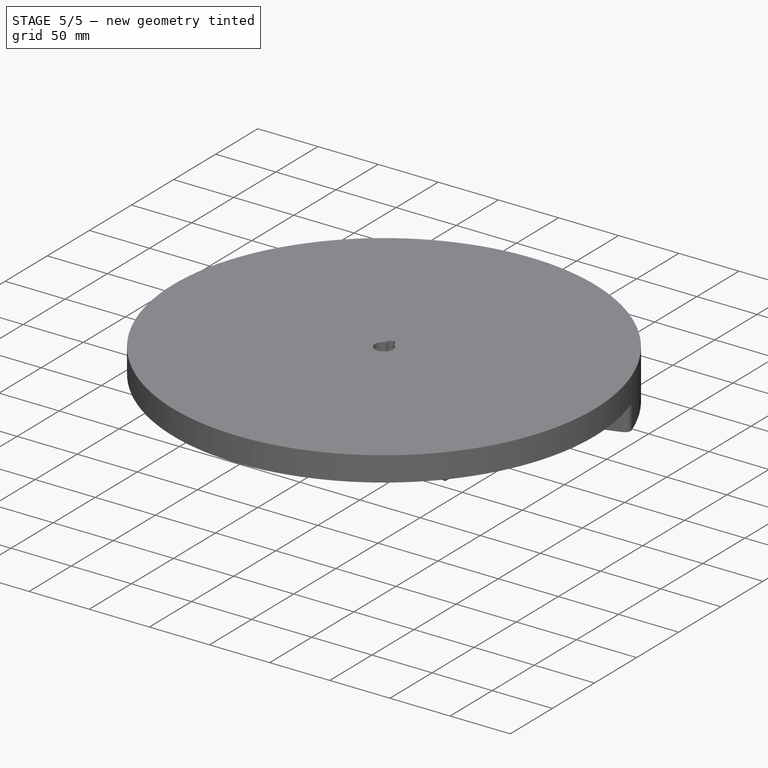
[diagram: stage 5 of 5 — iso view after this stage's code; geometry added in this stage tinted green]
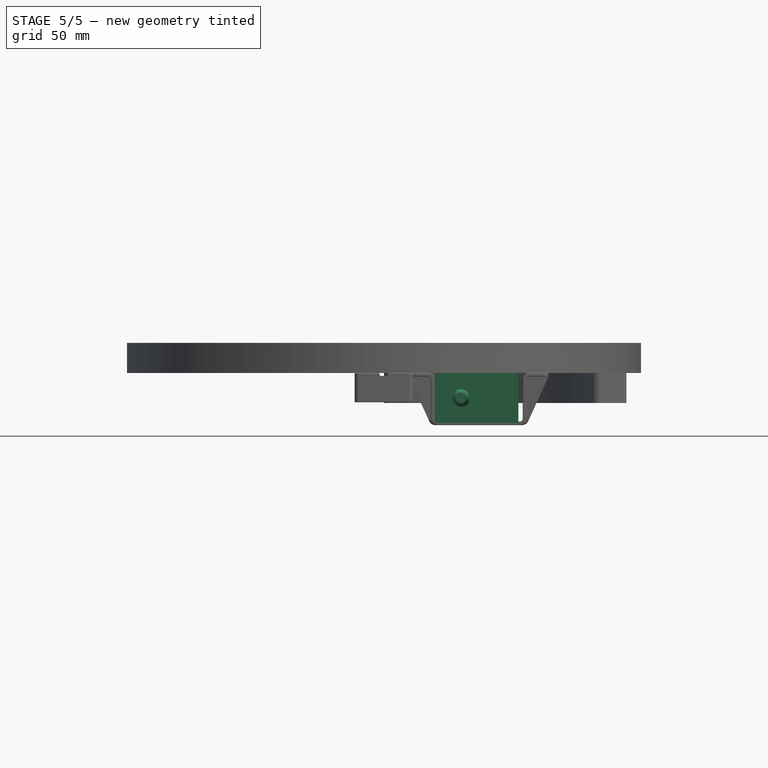
[diagram: stage 5 of 5 — front view after this stage's code; geometry added in this stage tinted green]
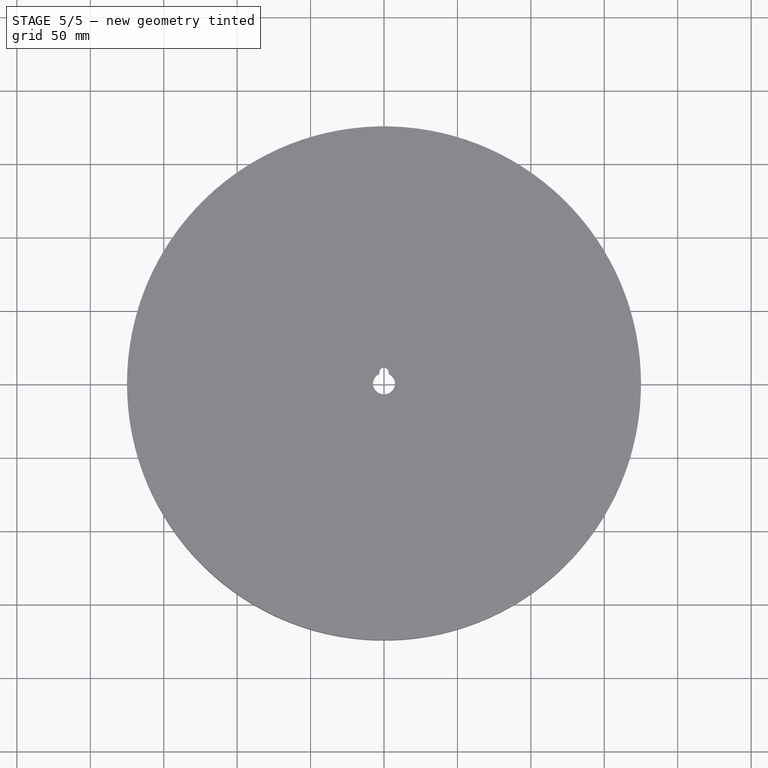
[diagram: stage 5 of 5 — top view after this stage's code; geometry added in this stage tinted green]
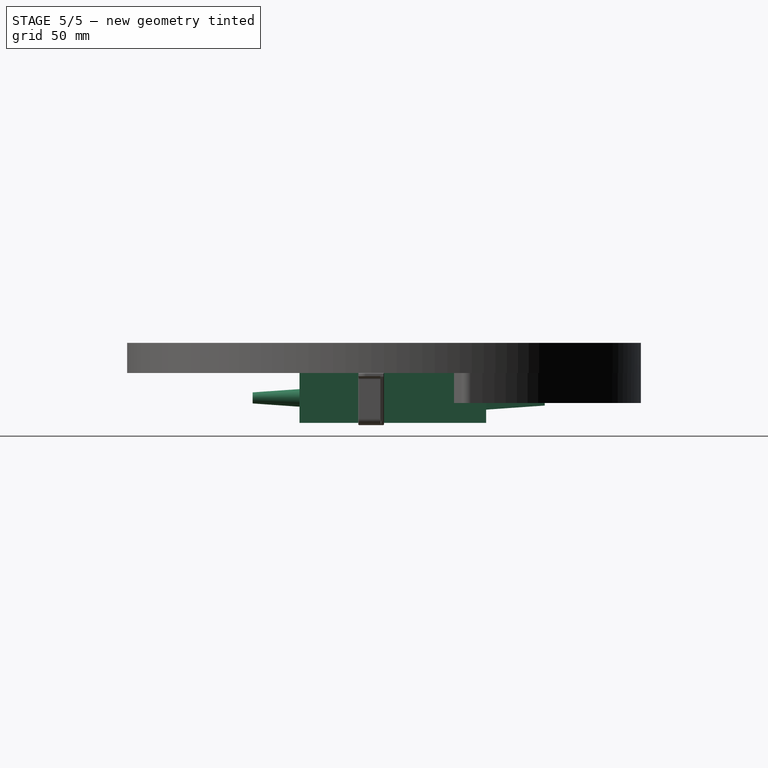
[diagram: stage 5 of 5 — right view after this stage's code; geometry added in this stage tinted green]
FEATURE [Sketcher::SketchObject] Sketch004
  FullyConstrained = true
  MapMode = 5
  Support = -> [XY_Plane002]
  sketch-geometry (4):
    g0: LineSegment StartX=-28.5 StartY=63.5 StartZ=0 EndX=28.5 EndY=63.5 EndZ=0
    g1: LineSegment StartX=28.5 StartY=63.5 StartZ=0 EndX=28.5 EndY=-63.5 EndZ=0
    g2: LineSegment StartX=28.5 StartY=-63.5 StartZ=0 EndX=-28.5 EndY=-63.5 EndZ=0
    g3: LineSegment StartX=-28.5 StartY=-63.5 StartZ=0 EndX=-28.5 EndY=63.5 EndZ=0
  constraints (11):
    c: Coincident(g0,g1)
    c: Coincident(g1,g2)
    c: Coincident(g2,g3)
    c: Coincident(g3,g0)
    c: Horizontal(g0)
    c: Horizontal(g2)
    c: Vertical(g1)
    c: Vertical(g3)
    c: Symmetric(g0,g2,g-1)
    c: DistanceY(g1,g1) = 127
    c: DistanceX(g0,g0) = 57
FEATURE [PartDesign::Pad] Pad002
  Direction = (0,0,1)
  Length = 34
  Length2 = 10
  Profile = -> Sketch004
  ReferenceAxis = -> Sketch004 [N_Axis]
  Reversed = true
  Type = 0
FEATURE [Sketcher::SketchObject] Sketch005
  ExternalGeometry = -> [Pad002]
  FullyConstrained = true
  MapMode = 5
  Placement = pos=(0,63.5,0) rot=(0,0.707107,0.707107;3.14159rad)
  Support = -> [Pad002]
  sketch-geometry (5):
    g0: GeomPoint X=-7e-16 Y=-17 Z=0
    g1: LineSegment StartX=-12.5 StartY=-9 StartZ=0 EndX=12.5 EndY=-9 EndZ=0
    g2: LineSegment StartX=12.5 StartY=-9 StartZ=0 EndX=12.5 EndY=-25 EndZ=0
    g3: LineSegment StartX=12.5 StartY=-25 StartZ=0 EndX=-12.5 EndY=-25 EndZ=0
    g4: LineSegment StartX=-12.5 StartY=-25 StartZ=0 EndX=-12.5 EndY=-9 EndZ=0
  constraints (12):
    c: Symmetric(g-4,g-3,g0)
    c: Coincident(g1,g2)
    c: Coincident(g2,g3)
    c: Coincident(g3,g4)
    c: Coincident(g4,g1)
    c: Horizontal(g1)
    c: Horizontal(g3)
    c: Vertical(g2)
    c: Vertical(g4)
    c: Symmetric(g1,g3,g0)
    c: DistanceX(g3,g3) = 25
    c: DistanceY(g2,g2) = 16
FEATURE [PartDesign::Pad] Pad003
  BaseFeature = -> Pad002
  Direction = (0,1,-2e-16)
  Length = 40
  Length2 = 10
  Profile = -> Sketch005
  ReferenceAxis = -> Sketch005 [N_Axis]
  TaperAngle = -4
  Type = 0
FEATURE [Sketcher::SketchObject] Sketch006
  ExternalGeometry = -> [Sketch005]
  FullyConstrained = true
  MapMode = 5
  Placement = pos=(0,103.5,0) rot=(0,0.707107,0.707107;3.14159rad)
  Support = -> [Pad003]
  sketch-geometry (1):
    g0: Circle CenterX=1.1e-15 CenterY=-17 CenterZ=0 NormalX=0 NormalY=0 NormalZ=1 AngleXU=0 Radius=2.65
  constraints (2):
    c: Symmetric(g-4,g-3,g0)
    c: Diameter(g0) = 5.3
FEATURE [PartDesign::Pad] Pad004
  BaseFeature = -> Pad003
  Direction = (0,1,-2e-16)
  Length = 10
  Length2 = 10
  Profile = -> Sketch006
  ReferenceAxis = -> Sketch006 [N_Axis]
  Type = 0
FEATURE [Sketcher::SketchObject] Sketch007
  ExternalGeometry = -> [Pad004]
  FullyConstrained = true
  MapMode = 5
  Placement = pos=(0,-63.5,0) rot=(1,0,0;1.5708rad)
  Support = -> [Pad004]
  sketch-geometry (3):
    g0: GeomPoint X=-28.5 Y=-17 Z=0
    g1: Circle CenterX=-10.5 CenterY=-17 CenterZ=0 NormalX=0 NormalY=0 NormalZ=1 AngleXU=0 Radius=6
    g2: LineSegment StartX=-28.5 StartY=-17 StartZ=0 EndX=-10.5 EndY=-17 EndZ=0
  constraints (6):
    c: Symmetric(g-3,g-3,g0)
    c: Coincident(g2,g0)
    c: Coincident(g2,g1)
    c: Horizontal(g2)
    c: DistanceX(g2,g2) = 18
    c: Diameter(g1) = 12
FEATURE [PartDesign::Pad] Pad005
  BaseFeature = -> Pad004
  Direction = (0,-1,2e-16)
  Length = 32
  Length2 = 10
  Profile = -> Sketch007
  ReferenceAxis = -> Sketch007 [N_Axis]
  TaperAngle = -4
  Type = 0
FEATURE [PartDesign::FeatureBase] Clone
  BaseFeature = -> Body002
  Placement = pos=(63,6,0) rot=(0,0,1;0rad)
FEATURE [PartDesign::FeatureBase] Clone001
  BaseFeature = -> Fillet
FEATURE [PartDesign::Body] Body005
  BaseFeature = -> Fillet
  Group = -> [Clone001]
  Origin = -> Origin005
  Placement = pos=(0,0,0) rot=(0,0,-1;1.5708rad)
  Tip = -> Clone001
FEATURE [PartDesign::FeatureBase] Clone002
  BaseFeature = -> Fillet
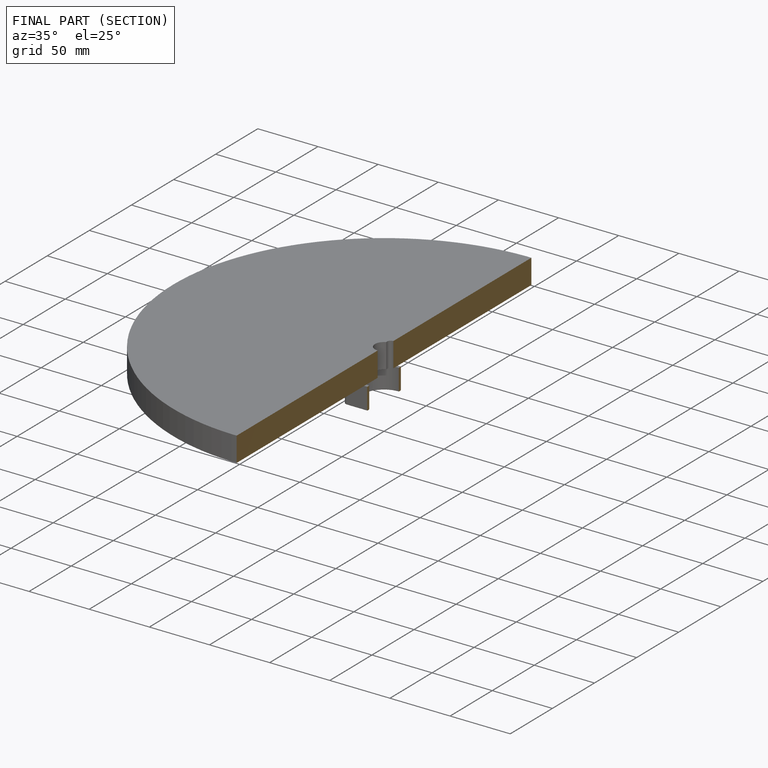
[diagram: finished part — half-section view (interior)]
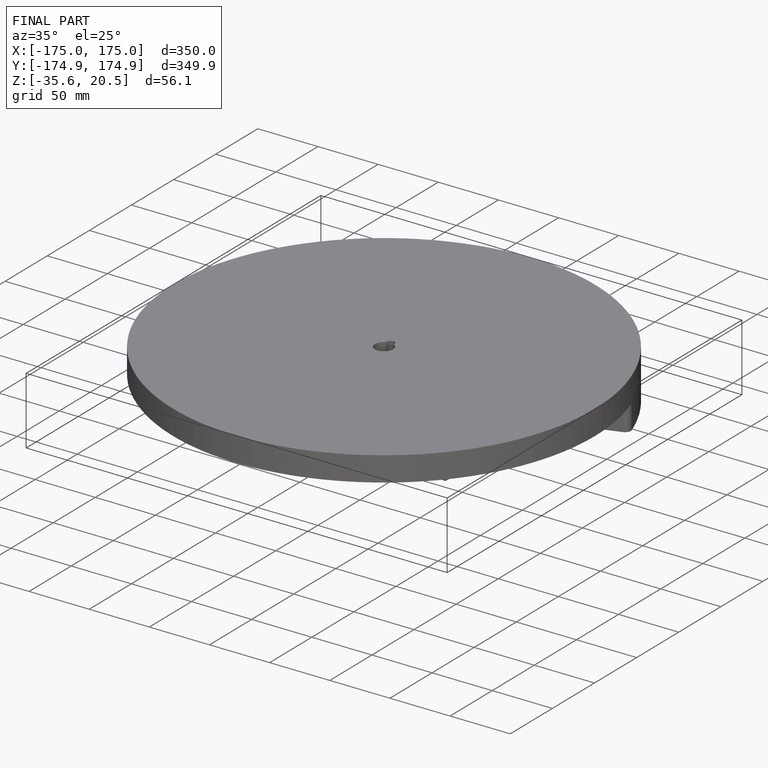
[diagram: finished part — iso view with bounding-box wireframe]
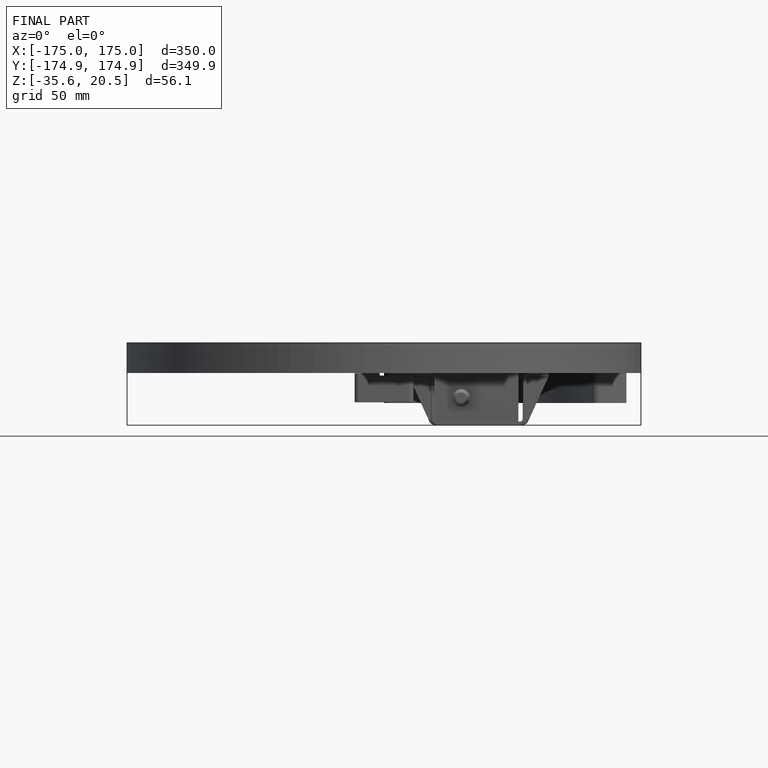
[diagram: finished part — front view with bounding-box wireframe]
